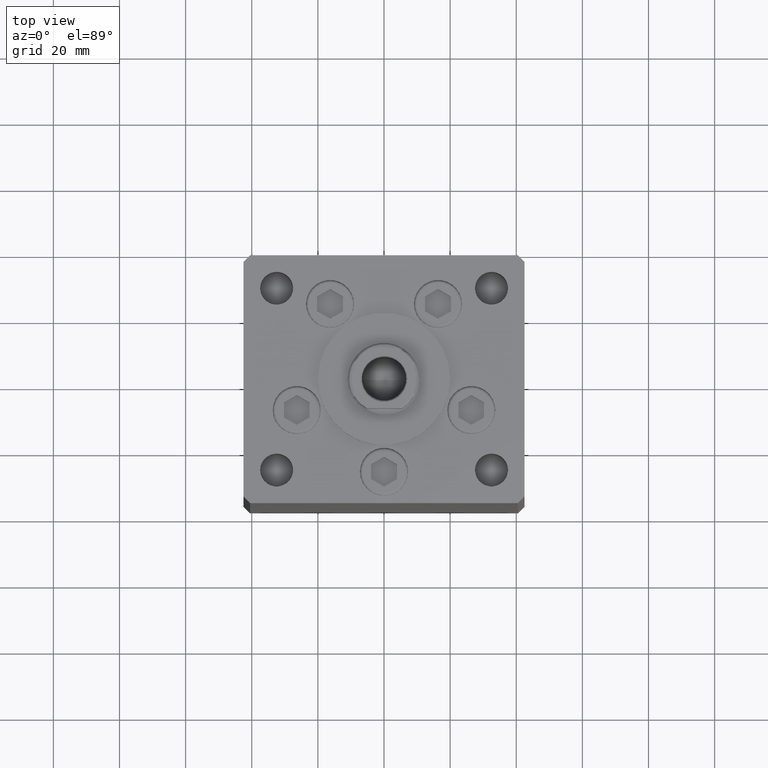
[diagram: clean part render]
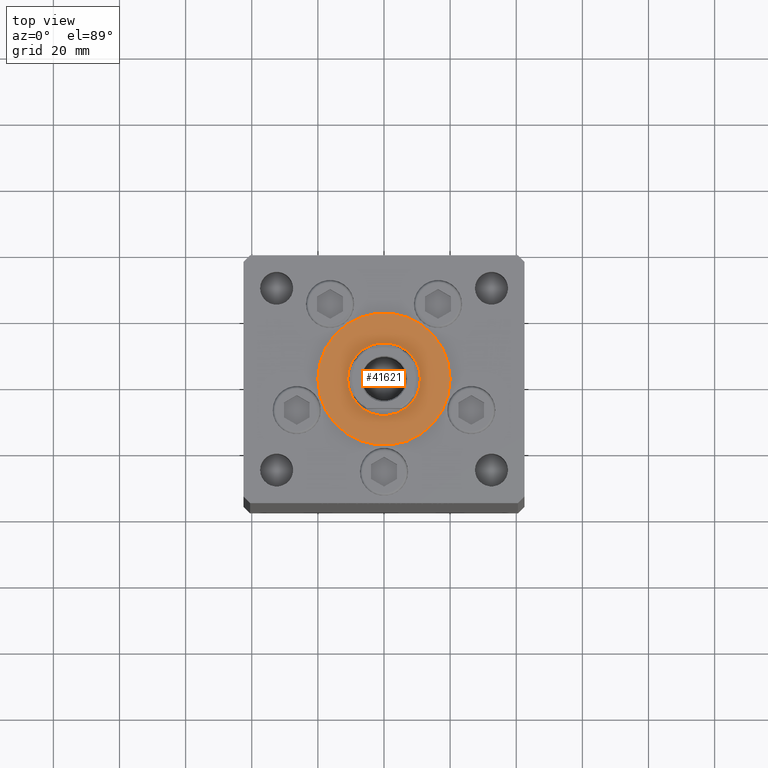
[diagram: same view with one face highlighted and labeled with its STEP entity id]
A machine part, top view. The second image highlights one B-rep face of the part: STEP entity #41621.
In plain terms, the highlighted planar face has unit normal (0, 0, 1).
Its self-contained STEP definition (entity closure, byte-faithful):
#745 = EDGE_CURVE ( 'NONE', #2206, #25164, #23265, .T. ) ;
#2206 = VERTEX_POINT ( 'NONE', #44880 ) ;
#2370 = EDGE_CURVE ( 'NONE', #20580, #27511, #46067, .T. ) ;
#2426 = ORIENTED_EDGE ( 'NONE', *, *, #2370, .F. ) ;
#3832 = DIRECTION ( 'NONE',  ( 1.000000000000000000, 0.000000000000000000, 0.000000000000000000 ) ) ;
#5346 = CIRCLE ( 'NONE', #18807, 11.00000000000000000 ) ;
#6530 = CARTESIAN_POINT ( 'NONE',  ( 0.000000000000000000, -6.938893903907228378E-15, 2.000000000000000000 ) ) ;
#10248 = EDGE_LOOP ( 'NONE', ( #17806, #18318 ) ) ;
#14496 = DIRECTION ( 'NONE',  ( 0.000000000000000000, 0.000000000000000000, 1.000000000000000000 ) ) ;
#14946 = CARTESIAN_POINT ( 'NONE',  ( 0.000000000000000000, -6.938893903907228378E-15, 2.000000000000000000 ) ) ;
#16730 = ORIENTED_EDGE ( 'NONE', *, *, #26773, .F. ) ;
#16869 = CARTESIAN_POINT ( 'NONE',  ( 0.000000000000000000, -6.938893903907228378E-15, 2.000000000000000000 ) ) ;
#16887 = EDGE_CURVE ( 'NONE', #25164, #2206, #30460, .T. ) ;
#17806 = ORIENTED_EDGE ( 'NONE', *, *, #16887, .T. ) ;
#18318 = ORIENTED_EDGE ( 'NONE', *, *, #745, .T. ) ;
#18807 = AXIS2_PLACEMENT_3D ( 'NONE', #22669, #14496, #26621 ) ;
#20015 = CARTESIAN_POINT ( 'NONE',  ( -11.00000000000000000, -5.591782424845139381E-15, 2.000000000000000000 ) ) ;
#20580 = VERTEX_POINT ( 'NONE', #20015 ) ;
#22618 = DIRECTION ( 'NONE',  ( 0.000000000000000000, 0.000000000000000000, 1.000000000000000000 ) ) ;
#22669 = CARTESIAN_POINT ( 'NONE',  ( 0.000000000000000000, -6.938893903907228378E-15, 2.000000000000000000 ) ) ;
#23265 = CIRCLE ( 'NONE', #50350, 20.00000000000000000 ) ;
#23379 = FACE_OUTER_BOUND ( 'NONE', #10248, .T. ) ;
#23875 = CARTESIAN_POINT ( 'NONE',  ( 0.000000000000000000, -6.938893903907228378E-15, 2.000000000000000000 ) ) ;
#25164 = VERTEX_POINT ( 'NONE', #48974 ) ;
#26621 = DIRECTION ( 'NONE',  ( 1.000000000000000000, 0.000000000000000000, 0.000000000000000000 ) ) ;
#26773 = EDGE_CURVE ( 'NONE', #27511, #20580, #5346, .T. ) ;
#27511 = VERTEX_POINT ( 'NONE', #48835 ) ;
#30460 = CIRCLE ( 'NONE', #35508, 20.00000000000000000 ) ;
#32091 = DIRECTION ( 'NONE',  ( 0.000000000000000000, 0.000000000000000000, 1.000000000000000000 ) ) ;
#34393 = AXIS2_PLACEMENT_3D ( 'NONE', #14946, #32091, #47932 ) ;
#34995 = EDGE_LOOP ( 'NONE', ( #16730, #2426 ) ) ;
#35508 = AXIS2_PLACEMENT_3D ( 'NONE', #23875, #39965, #3832 ) ;
#38482 = AXIS2_PLACEMENT_3D ( 'NONE', #16869, #49064, #49319 ) ;
#38708 = DIRECTION ( 'NONE',  ( 1.000000000000000000, 0.000000000000000000, 0.000000000000000000 ) ) ;
#39965 = DIRECTION ( 'NONE',  ( 0.000000000000000000, 0.000000000000000000, 1.000000000000000000 ) ) ;
#41621 = ADVANCED_FACE ( 'NONE', ( #43708, #23379 ), #43975, .T. ) ;
#43708 = FACE_BOUND ( 'NONE', #34995, .T. ) ;
#43975 = PLANE ( 'NONE',  #34393 ) ;
#44880 = CARTESIAN_POINT ( 'NONE',  ( 20.00000000000000000, -4.489600305612522259E-15, 2.000000000000000000 ) ) ;
#46067 = CIRCLE ( 'NONE', #38482, 11.00000000000000000 ) ;
#47932 = DIRECTION ( 'NONE',  ( 1.000000000000000000, 0.000000000000000000, -0.000000000000000000 ) ) ;
#48835 = CARTESIAN_POINT ( 'NONE',  ( 11.00000000000000000, -6.938893903907228378E-15, 2.000000000000000000 ) ) ;
#48974 = CARTESIAN_POINT ( 'NONE',  ( -20.00000000000000000, -6.938893903907228378E-15, 2.000000000000000000 ) ) ;
#49064 = DIRECTION ( 'NONE',  ( 0.000000000000000000, 0.000000000000000000, 1.000000000000000000 ) ) ;
#49319 = DIRECTION ( 'NONE',  ( 1.000000000000000000, 0.000000000000000000, 0.000000000000000000 ) ) ;
#50350 = AXIS2_PLACEMENT_3D ( 'NONE', #6530, #22618, #38708 ) ;